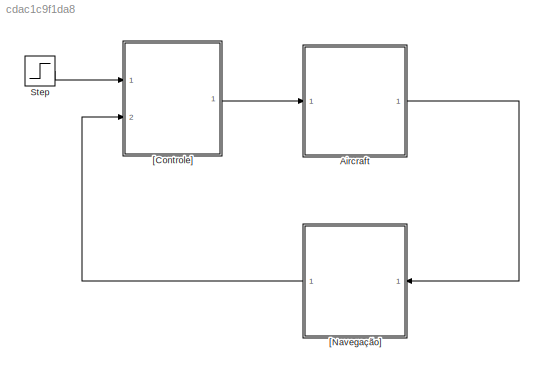
MODEL slx_cdac1c9f1da8
KIND model
CONFIG AbsTol = auto
CONFIG FixedStep = auto
CONFIG MaxStep = auto
CONFIG MinStep = auto
CONFIG RelTol = 1e-3
CONFIG SampleTimeConstraint = Unconstrained
CONFIG Solver = ode45
CONFIG SolverMode = Auto
CONFIG SolverName = ode45
CONFIG StartTime = 0.0
CONFIG StopTime = inf
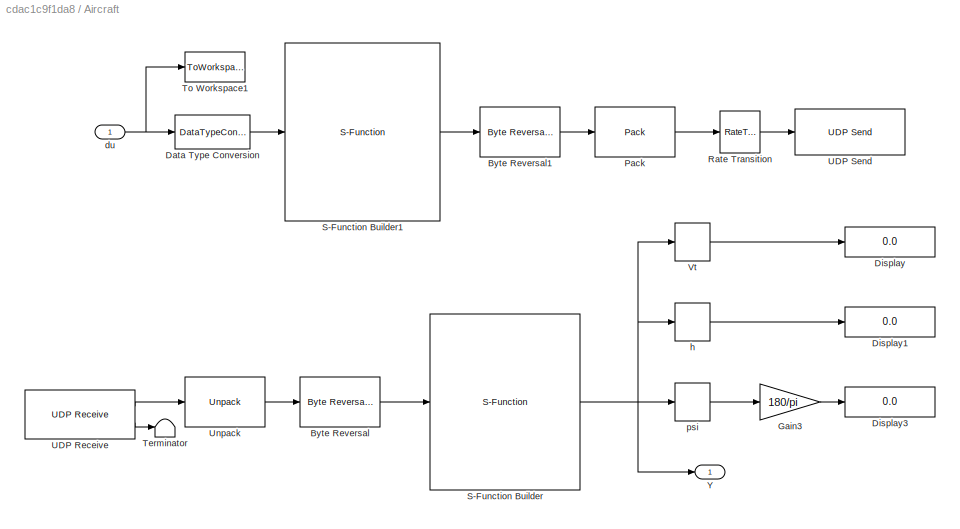
BLOCK [SubSystem] Aircraft
  Ports = [1, 1]
  RequestExecContextInheritance = off
  Variant = off
BLOCK [Reference] Aircraft/Byte Reversal  REF=xpcutilitieslib/Byte Reversal 
  Ports = [1, 1]
  SourceBlock = xpcutilitieslib/Byte Reversal
  SourceType = xpcreverseendian
BLOCK [Reference] Aircraft/Byte Reversal1  REF=xpcutilitieslib/Byte Reversal 
  Ports = [1, 1]
  SourceBlock = xpcutilitieslib/Byte Reversal
  SourceType = xpcreverseendian
BLOCK [DataTypeConversion] Aircraft/Data Type Conversion
  OutDataTypeStr = single
  RndMeth = Floor
  SaturateOnIntegerOverflow = off
BLOCK [Display] Aircraft/Display
  Decimation = 1
  Ports = [1]
BLOCK [Display] Aircraft/Display1
  Decimation = 1
  Ports = [1]
BLOCK [Display] Aircraft/Display3
  Decimation = 1
  Ports = [1]
BLOCK [Gain] Aircraft/Gain3
  Gain = 180/pi
  OutDataTypeStr = Inherit: Inherit via internal rule
  ParamDataTypeStr = Inherit: Inherit via internal rule
  SaturateOnIntegerOverflow = off
BLOCK [Reference] Aircraft/Pack  REF=xpcobsoletelib/Utilities/Pack 
  Ports = [1, 1]
  SourceBlock = xpcobsoletelib/Utilities/Pack
  SourceType = xpcany2byte
BLOCK [RateTransition] Aircraft/Rate Transition
  OutPortSampleTime = 0.02
BLOCK [S-Function] Aircraft/S-Function Builder
  CopyFcn = set_param(gcbh,'LinkStatus','none')
  EnableBusSupport = off
  FunctionName = dados_xplane
  InitFcn = try, set_param(gcb,'FunctionName','dados_xplane'), end
  OpenFcn = sfunctionwizard(gcbh)
  Ports = [1, 1]
  PreSaveFcn = try, set_param(gcb,'FunctionName','dados_xplane'), end
  SFunctionDeploymentMode = off
  SFunctionModules = dados_xplane_wrapper
BLOCK [S-Function] Aircraft/S-Function Builder1
  CopyFcn = set_param(gcbh,'LinkStatus','none')
  EnableBusSupport = off
  FunctionName = dados_matlab
  InitFcn = try, set_param(gcb,'FunctionName','dados_matlab'), end
  OpenFcn = sfunctionwizard(gcbh)
  Ports = [1, 1]
  PreSaveFcn = try, set_param(gcb,'FunctionName','dados_matlab'), end
  SFunctionDeploymentMode = off
  SFunctionModules = dados_matlab_wrapper crc
BLOCK [Terminator] Aircraft/Terminator
BLOCK [ToWorkspace] Aircraft/To Workspace1
  FixptAsFi = on
  MaxDataPoints = inf
  Ports = [1]
  SampleTime = -1
  Save2DSignal = 3-D array (concatenate along third dimension)
  SaveFormat = Timeseries
  VariableName = U
BLOCK [Reference] Aircraft/UDP Receive  REF=instrumentlib/UDP Receive
  Ports = [0, 2]
  SourceBlock = instrumentlib/UDP Receive
  SourceType = UDP Receive
BLOCK [Reference] Aircraft/UDP Send  REF=instrumentlib/UDP Send
  Ports = [1]
  SourceBlock = instrumentlib/UDP Send
  SourceType = UDP Send
BLOCK [Reference] Aircraft/Unpack  REF=xpcobsoletelib/Utilities/Unpack 
  Ports = [1, 1]
  SourceBlock = xpcobsoletelib/Utilities/Unpack
  SourceType = xpcbyte2any
BLOCK [Selector] Aircraft/Vt
  IndexOptions = Index vector (dialog)
  Indices = [1]
  InputPortWidth = 12
  OutputSizes = 1
  Ports = [1, 1]
BLOCK [Outport] Aircraft/Y
  IconDisplay = Port number
BLOCK [Inport] Aircraft/du
  IconDisplay = Port number
BLOCK [Selector] Aircraft/h
  IndexOptions = Index vector (dialog)
  Indices = [12]
  InputPortWidth = 12
  OutputSizes = 1
  Ports = [1, 1]
BLOCK [Selector] Aircraft/psi
  IndexOptions = Index vector (dialog)
  Indices = [9]
  InputPortWidth = 12
  OutputSizes = 1
  Ports = [1, 1]
BLOCK [Step] Step
  After = degtorad(20)
  SampleTime = 0
  Time = 0
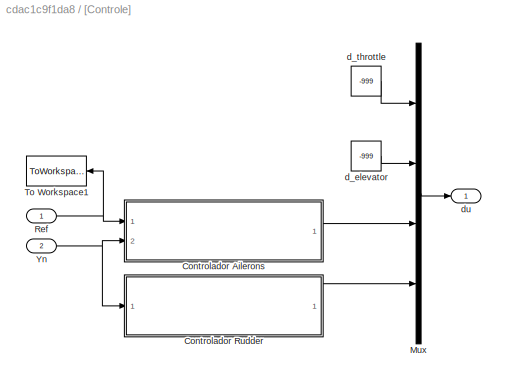
BLOCK [SubSystem] [Controle]
  Ports = [2, 1]
  RequestExecContextInheritance = off
  Variant = off
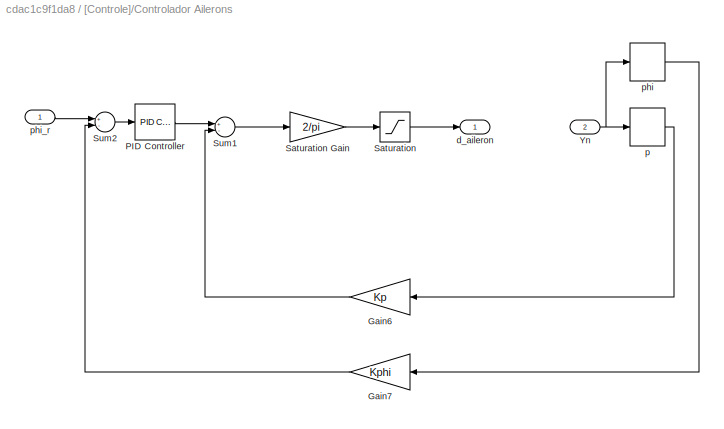
BLOCK [SubSystem] [Controle]/Controlador Ailerons
  Ports = [2, 1]
  RequestExecContextInheritance = off
  Variant = off
BLOCK [Gain] [Controle]/Controlador Ailerons/Gain6
  Gain = Kp
  OutDataTypeStr = Inherit: Inherit via internal rule
  ParamDataTypeStr = Inherit: Inherit via internal rule
  SaturateOnIntegerOverflow = off
BLOCK [Gain] [Controle]/Controlador Ailerons/Gain7
  Gain = Kphi
  OutDataTypeStr = Inherit: Inherit via internal rule
  ParamDataTypeStr = Inherit: Inherit via internal rule
  SaturateOnIntegerOverflow = off
BLOCK [Reference] [Controle]/Controlador Ailerons/PID Controller  REF=simulink/Continuous/PID Controller
  Ports = [1, 1]
  SourceBlock = simulink/Continuous/PID Controller
  SourceType = PID 1dof
BLOCK [Saturate] [Controle]/Controlador Ailerons/Saturation
  InputPortMap = u0
  Ports = [1, 1]
BLOCK [Gain] [Controle]/Controlador Ailerons/Saturation Gain
  Gain = 2/pi
  OutDataTypeStr = Inherit: Inherit via internal rule
  ParamDataTypeStr = Inherit: Inherit via internal rule
  SaturateOnIntegerOverflow = off
BLOCK [Sum] [Controle]/Controlador Ailerons/Sum1
  InputSameDT = off
  Inputs = +-
  OutDataTypeStr = Inherit: Inherit via internal rule
  Ports = [2, 1]
  SaturateOnIntegerOverflow = off
BLOCK [Sum] [Controle]/Controlador Ailerons/Sum2
  InputSameDT = off
  Inputs = +-
  OutDataTypeStr = Inherit: Inherit via internal rule
  Ports = [2, 1]
  SaturateOnIntegerOverflow = off
BLOCK [Inport] [Controle]/Controlador Ailerons/Yn
  IconDisplay = Port number
  Port = 2
BLOCK [Outport] [Controle]/Controlador Ailerons/d_aileron
  IconDisplay = Port number
BLOCK [Selector] [Controle]/Controlador Ailerons/p
  IndexOptions = Index vector (dialog)
  Indices = [2]
  InputPortWidth = 5
  OutputSizes = 1
  Ports = [1, 1]
BLOCK [Selector] [Controle]/Controlador Ailerons/phi
  IndexOptions = Index vector (dialog)
  Indices = [4]
  InputPortWidth = 5
  OutputSizes = 1
  Ports = [1, 1]
BLOCK [Inport] [Controle]/Controlador Ailerons/phi_r
  IconDisplay = Port number
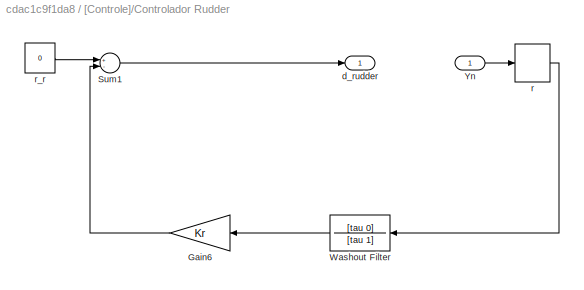
BLOCK [SubSystem] [Controle]/Controlador Rudder
  Ports = [1, 1]
  RequestExecContextInheritance = off
  Variant = off
BLOCK [Gain] [Controle]/Controlador Rudder/Gain6
  Gain = Kr
  OutDataTypeStr = Inherit: Inherit via internal rule
  ParamDataTypeStr = Inherit: Inherit via internal rule
  SaturateOnIntegerOverflow = off
BLOCK [Sum] [Controle]/Controlador Rudder/Sum1
  InputSameDT = off
  Inputs = +-
  OutDataTypeStr = Inherit: Inherit via internal rule
  Ports = [2, 1]
  SaturateOnIntegerOverflow = off
BLOCK [TransferFcn] [Controle]/Controlador Rudder/Washout Filter
  Denominator = [tau 1]
  Numerator = [tau 0]
BLOCK [Inport] [Controle]/Controlador Rudder/Yn
  IconDisplay = Port number
BLOCK [Outport] [Controle]/Controlador Rudder/d_rudder
  IconDisplay = Port number
BLOCK [Selector] [Controle]/Controlador Rudder/r
  IndexOptions = Index vector (dialog)
  Indices = [3]
  InputPortWidth = 5
  OutputSizes = 1
  Ports = [1, 1]
BLOCK [Constant] [Controle]/Controlador Rudder/r_r
  Value = 0
BLOCK [Mux] [Controle]/Mux
  DisplayOption = bar
  Ports = [4, 1]
BLOCK [Inport] [Controle]/Ref
  IconDisplay = Port number
BLOCK [ToWorkspace] [Controle]/To Workspace1
  MaxDataPoints = inf
  Ports = [1]
  SampleTime = -1
  SaveFormat = Timeseries
  VariableName = NLstep
BLOCK [Inport] [Controle]/Yn
  IconDisplay = Port number
  Port = 2
BLOCK [Constant] [Controle]/d_elevator
  Value = -999
BLOCK [Constant] [Controle]/d_throttle
  Value = -999
BLOCK [Outport] [Controle]/du
  IconDisplay = Port number
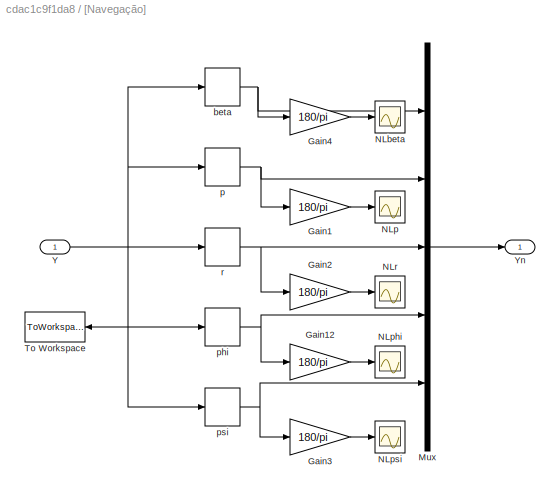
BLOCK [SubSystem] [Navegação]
  Ports = [1, 1]
  RequestExecContextInheritance = off
  Variant = off
BLOCK [Gain] [Navegação]/Gain1
  Gain = 180/pi
  OutDataTypeStr = Inherit: Inherit via internal rule
  ParamDataTypeStr = Inherit: Inherit via internal rule
  SaturateOnIntegerOverflow = off
BLOCK [Gain] [Navegação]/Gain12
  Gain = 180/pi
  OutDataTypeStr = Inherit: Inherit via internal rule
  ParamDataTypeStr = Inherit: Inherit via internal rule
  SaturateOnIntegerOverflow = off
BLOCK [Gain] [Navegação]/Gain2
  Gain = 180/pi
  OutDataTypeStr = Inherit: Inherit via internal rule
  ParamDataTypeStr = Inherit: Inherit via internal rule
  SaturateOnIntegerOverflow = off
BLOCK [Gain] [Navegação]/Gain3
  Gain = 180/pi
  OutDataTypeStr = Inherit: Inherit via internal rule
  ParamDataTypeStr = Inherit: Inherit via internal rule
  SaturateOnIntegerOverflow = off
BLOCK [Gain] [Navegação]/Gain4
  Gain = 180/pi
  OutDataTypeStr = Inherit: Inherit via internal rule
  ParamDataTypeStr = Inherit: Inherit via internal rule
  SaturateOnIntegerOverflow = off
BLOCK [Mux] [Navegação]/Mux
  DisplayOption = bar
  Inputs = 5
  Ports = [5, 1]
BLOCK [Scope] [Navegação]/NLbeta
  Ports = [1]
  ScopeSpecificationString = Simulink.scopes.TimeScopeBlockCfg('CurrentConfiguration', extmgr.ConfigurationSet(extmgr.Configuration('Core','General UI',true),extmgr.Configuration('Core','Source UI',true),extmgr.Configuration('Sources','WiredSimulink',true,'DataLoggingVariableName','ScopeData3','DataLoggingSaveFormat','StructureWithTime','DataLoggingLimitDataPoints',true,'DataLoggingDecimation','1','DataLoggingDecimateData',tr...<+1720ch>
BLOCK [Scope] [Navegação]/NLp
  Ports = [1]
  ScopeSpecificationString = Simulink.scopes.TimeScopeBlockCfg('CurrentConfiguration', extmgr.ConfigurationSet(extmgr.Configuration('Core','General UI',true),extmgr.Configuration('Core','Source UI',true),extmgr.Configuration('Sources','WiredSimulink',true,'DataLoggingVariableName','ScopeData8','DataLoggingSaveFormat','StructureWithTime','DataLoggingLimitDataPoints',true,'DataLoggingDecimation','1','DataLoggingDecimateData',tr...<+1726ch>
BLOCK [Scope] [Navegação]/NLphi
  Ports = [1]
  ScopeSpecificationString = Simulink.scopes.TimeScopeBlockCfg('CurrentConfiguration', extmgr.ConfigurationSet(extmgr.Configuration('Core','General UI',true),extmgr.Configuration('Core','Source UI',true),extmgr.Configuration('Sources','WiredSimulink',true,'DataLoggingVariableName','ScopeData7','DataLoggingSaveFormat','StructureWithTime','DataLoggingLimitDataPoints',true,'DataLoggingDecimation','1','DataLoggingDecimateData',tr...<+1754ch>
BLOCK [Scope] [Navegação]/NLpsi
  Ports = [1]
  ScopeSpecificationString = Simulink.scopes.TimeScopeBlockCfg('CurrentConfiguration', extmgr.ConfigurationSet(extmgr.Configuration('Core','General UI',true),extmgr.Configuration('Core','Source UI',true),extmgr.Configuration('Sources','WiredSimulink',true,'DataLoggingVariableName','ScopeData5','DataLoggingSaveFormat','StructureWithTime','DataLoggingLimitDataPoints',true,'DataLoggingDecimation','1','DataLoggingDecimateData',tr...<+1732ch>
BLOCK [Scope] [Navegação]/NLr
  Ports = [1]
  ScopeSpecificationString = Simulink.scopes.TimeScopeBlockCfg('CurrentConfiguration', extmgr.ConfigurationSet(extmgr.Configuration('Core','General UI',true),extmgr.Configuration('Core','Source UI',true),extmgr.Configuration('Sources','WiredSimulink',true,'DataLoggingVariableName','ScopeData9','DataLoggingSaveFormat','StructureWithTime','DataLoggingLimitDataPoints',true,'DataLoggingDecimation','1','DataLoggingDecimateData',tr...<+1724ch>
BLOCK [ToWorkspace] [Navegação]/To Workspace
  MaxDataPoints = inf
  Ports = [1]
  SampleTime = -1
  SaveFormat = Timeseries
  VariableName = Y
BLOCK [Inport] [Navegação]/Y
  IconDisplay = Port number
BLOCK [Outport] [Navegação]/Yn
  IconDisplay = Port number
BLOCK [Selector] [Navegação]/beta
  IndexOptions = Index vector (dialog)
  Indices = [3]
  InputPortWidth = 12
  OutputSizes = 1
  Ports = [1, 1]
BLOCK [Selector] [Navegação]/p
  IndexOptions = Index vector (dialog)
  Indices = [4]
  InputPortWidth = 12
  OutputSizes = 1
  Ports = [1, 1]
BLOCK [Selector] [Navegação]/phi
  IndexOptions = Index vector (dialog)
  Indices = [7]
  InputPortWidth = 12
  OutputSizes = 1
  Ports = [1, 1]
BLOCK [Selector] [Navegação]/psi
  IndexOptions = Index vector (dialog)
  Indices = [9]
  InputPortWidth = 12
  OutputSizes = 1
  Ports = [1, 1]
BLOCK [Selector] [Navegação]/r
  IndexOptions = Index vector (dialog)
  Indices = [6]
  InputPortWidth = 12
  OutputSizes = 1
  Ports = [1, 1]
LINE Aircraft/Byte Reversal1:1 -> Aircraft/Pack:1
LINE Aircraft/Byte Reversal:1 -> Aircraft/S-Function Builder:1
LINE Aircraft/Data Type Conversion:1 -> Aircraft/S-Function Builder1:1
LINE Aircraft/Gain3:1 -> Aircraft/Display3:1
LINE Aircraft/Pack:1 -> Aircraft/Rate Transition:1
LINE Aircraft/Rate Transition:1 -> Aircraft/UDP Send:1
LINE Aircraft/S-Function Builder1:1 -> Aircraft/Byte Reversal1:1
NET Aircraft/S-Function Builder:1 -> Aircraft/Vt:1, Aircraft/Y:1, Aircraft/h:1, Aircraft/psi:1
LINE Aircraft/UDP Receive:1 -> Aircraft/Unpack:1
LINE Aircraft/UDP Receive:2 -> Aircraft/Terminator:1
LINE Aircraft/Unpack:1 -> Aircraft/Byte Reversal:1
LINE Aircraft/Vt:1 -> Aircraft/Display:1
NET Aircraft/du:1 -> Aircraft/Data Type Conversion:1, Aircraft/To Workspace1:1
LINE Aircraft/h:1 -> Aircraft/Display1:1
LINE Aircraft/psi:1 -> Aircraft/Gain3:1
LINE Aircraft:1 -> [Navegação]:1
LINE Step:1 -> [Controle]:1
LINE [Controle]/Controlador Ailerons/Gain6:1 -> [Controle]/Controlador Ailerons/Sum1:2
LINE [Controle]/Controlador Ailerons/Gain7:1 -> [Controle]/Controlador Ailerons/Sum2:2
LINE [Controle]/Controlador Ailerons/PID Controller:1 -> [Controle]/Controlador Ailerons/Sum1:1
LINE [Controle]/Controlador Ailerons/Saturation Gain:1 -> [Controle]/Controlador Ailerons/Saturation:1
LINE [Controle]/Controlador Ailerons/Saturation:1 -> [Controle]/Controlador Ailerons/d_aileron:1
LINE [Controle]/Controlador Ailerons/Sum1:1 -> [Controle]/Controlador Ailerons/Saturation Gain:1
LINE [Controle]/Controlador Ailerons/Sum2:1 -> [Controle]/Controlador Ailerons/PID Controller:1
NET [Controle]/Controlador Ailerons/Yn:1 -> [Controle]/Controlador Ailerons/p:1, [Controle]/Controlador Ailerons/phi:1
LINE [Controle]/Controlador Ailerons/p:1 -> [Controle]/Controlador Ailerons/Gain6:1
LINE [Controle]/Controlador Ailerons/phi:1 -> [Controle]/Controlador Ailerons/Gain7:1
LINE [Controle]/Controlador Ailerons/phi_r:1 -> [Controle]/Controlador Ailerons/Sum2:1
LINE [Controle]/Controlador Ailerons:1 -> [Controle]/Mux:3
LINE [Controle]/Controlador Rudder/Gain6:1 -> [Controle]/Controlador Rudder/Sum1:2
LINE [Controle]/Controlador Rudder/Sum1:1 -> [Controle]/Controlador Rudder/d_rudder:1
LINE [Controle]/Controlador Rudder/Washout Filter:1 -> [Controle]/Controlador Rudder/Gain6:1
LINE [Controle]/Controlador Rudder/Yn:1 -> [Controle]/Controlador Rudder/r:1
LINE [Controle]/Controlador Rudder/r:1 -> [Controle]/Controlador Rudder/Washout Filter:1
LINE [Controle]/Controlador Rudder/r_r:1 -> [Controle]/Controlador Rudder/Sum1:1
LINE [Controle]/Controlador Rudder:1 -> [Controle]/Mux:4
LINE [Controle]/Mux:1 -> [Controle]/du:1
NET [Controle]/Ref:1 -> [Controle]/Controlador Ailerons:1, [Controle]/To Workspace1:1
NET [Controle]/Yn:1 -> [Controle]/Controlador Ailerons:2, [Controle]/Controlador Rudder:1
LINE [Controle]/d_elevator:1 -> [Controle]/Mux:2
LINE [Controle]/d_throttle:1 -> [Controle]/Mux:1
LINE [Controle]:1 -> Aircraft:1
LINE [Navegação]/Gain12:1 -> [Navegação]/NLphi:1
LINE [Navegação]/Gain1:1 -> [Navegação]/NLp:1
LINE [Navegação]/Gain2:1 -> [Navegação]/NLr:1
LINE [Navegação]/Gain3:1 -> [Navegação]/NLpsi:1
LINE [Navegação]/Gain4:1 -> [Navegação]/NLbeta:1
LINE [Navegação]/Mux:1 -> [Navegação]/Yn:1
NET [Navegação]/Y:1 -> [Navegação]/To Workspace:1, [Navegação]/beta:1, [Navegação]/p:1, [Navegação]/phi:1, [Navegação]/psi:1, [Navegação]/r:1
NET [Navegação]/beta:1 -> [Navegação]/Gain4:1, [Navegação]/Mux:1
NET [Navegação]/p:1 -> [Navegação]/Gain1:1, [Navegação]/Mux:2
NET [Navegação]/phi:1 -> [Navegação]/Gain12:1, [Navegação]/Mux:4
NET [Navegação]/psi:1 -> [Navegação]/Gain3:1, [Navegação]/Mux:5
NET [Navegação]/r:1 -> [Navegação]/Gain2:1, [Navegação]/Mux:3
LINE [Navegação]:1 -> [Controle]:2
note: NET lines group one-source signal fan-out (src -> all destinations, sorted); 1:1 wires keep LINE
